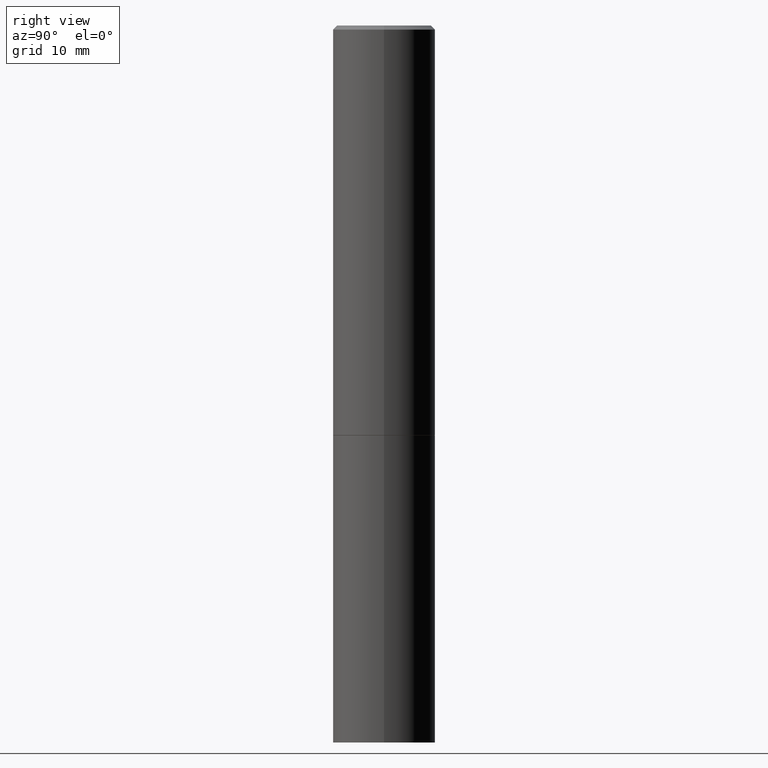
[diagram: clean part render]
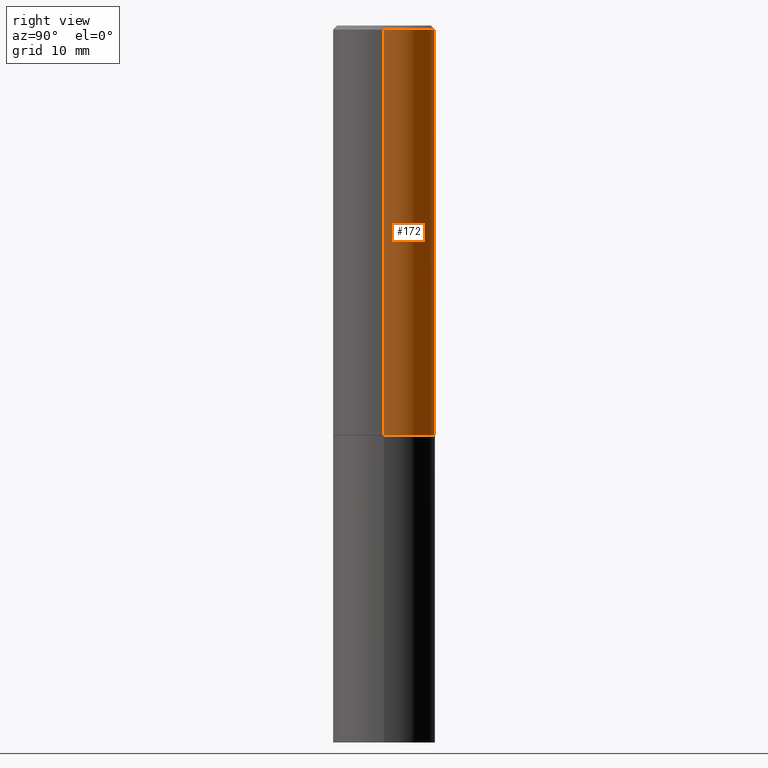
[diagram: same view with one face highlighted and labeled with its STEP entity id]
A machine part, right view. The second image highlights one B-rep face of the part: STEP entity #172.
In plain terms, the highlighted cylindrical surface (partial cylindrical patch) has radius 6.35 mm, axis along (-0, 0, 1).
Its self-contained STEP definition (entity closure, byte-faithful):
#2 = VERTEX_POINT ( 'NONE', #228 ) ;
#3 = LINE ( 'NONE', #238, #68 ) ;
#11 = EDGE_CURVE ( 'NONE', #2, #283, #248, .T. ) ;
#24 = DIRECTION ( 'NONE',  ( 1.000000000000000000, -6.982962677686266711E-15, 0.000000000000000000 ) ) ;
#27 = CARTESIAN_POINT ( 'NONE',  ( 4.888492143564087030E-29, -6.979471196347446580E-15, -1.998999999999999666 ) ) ;
#33 = LINE ( 'NONE', #293, #263 ) ;
#39 = DIRECTION ( 'NONE',  ( 1.000000000000000000, -6.982962677686266711E-15, 4.876176775795935793E-29 ) ) ;
#57 = DIRECTION ( 'NONE',  ( -2.445468806185136597E-29, 3.491481338843145583E-15, 1.000000000000000000 ) ) ;
#68 = VECTOR ( 'NONE', #232, 39.37007874015748143 ) ;
#71 = EDGE_CURVE ( 'NONE', #137, #283, #3, .T. ) ;
#72 = DIRECTION ( 'NONE',  ( -2.445468806185136597E-29, 3.491481338843145583E-15, 1.000000000000000000 ) ) ;
#87 = AXIS2_PLACEMENT_3D ( 'NONE', #340, #57, #247 ) ;
#104 = EDGE_LOOP ( 'NONE', ( #226, #161, #230, #253 ) ) ;
#109 = CARTESIAN_POINT ( 'NONE',  ( -0.2499999999999998057, 1.675911042644702196E-15, -0.02000000000000003164 ) ) ;
#125 = CIRCLE ( 'NONE', #297, 0.2500000000000000000 ) ;
#137 = VERTEX_POINT ( 'NONE', #242 ) ;
#139 = DIRECTION ( 'NONE',  ( -2.445468806185136877E-29, 3.491481338843145188E-15, 1.000000000000000000 ) ) ;
#161 = ORIENTED_EDGE ( 'NONE', *, *, #71, .T. ) ;
#172 = ADVANCED_FACE ( 'NONE', ( #326 ), #207, .T. ) ;
#184 = CARTESIAN_POINT ( 'NONE',  ( 0.2500000000000000000, -8.725211865769012469E-15, -1.998999999999999666 ) ) ;
#185 = VERTEX_POINT ( 'NONE', #184 ) ;
#207 = CYLINDRICAL_SURFACE ( 'NONE', #234, 0.2499999999999998890 ) ;
#226 = ORIENTED_EDGE ( 'NONE', *, *, #271, .T. ) ;
#228 = CARTESIAN_POINT ( 'NONE',  ( 0.2499999999999998057, -1.784954126219744611E-15, -0.02000000000000003164 ) ) ;
#230 = ORIENTED_EDGE ( 'NONE', *, *, #11, .F. ) ;
#232 = DIRECTION ( 'NONE',  ( -2.445468806185136877E-29, 3.491481338843145188E-15, 1.000000000000000000 ) ) ;
#234 = AXIS2_PLACEMENT_3D ( 'NONE', #320, #72, #39 ) ;
#238 = CARTESIAN_POINT ( 'NONE',  ( -0.2499999999999998890, 1.776356839400249676E-15, -1.229733772563726025E-29 ) ) ;
#242 = CARTESIAN_POINT ( 'NONE',  ( -0.2500000000000000000, -1.748293572161903489E-15, -1.998999999999999666 ) ) ;
#247 = DIRECTION ( 'NONE',  ( 1.000000000000000000, -6.982962677686266711E-15, 0.000000000000000000 ) ) ;
#248 = CIRCLE ( 'NONE', #87, 0.2499999999999998057 ) ;
#253 = ORIENTED_EDGE ( 'NONE', *, *, #342, .F. ) ;
#263 = VECTOR ( 'NONE', #139, 39.37007874015748143 ) ;
#271 = EDGE_CURVE ( 'NONE', #185, #137, #125, .T. ) ;
#283 = VERTEX_POINT ( 'NONE', #109 ) ;
#293 = CARTESIAN_POINT ( 'NONE',  ( 0.2499999999999998890, -1.745740669421565889E-15, 1.219044193948983388E-29 ) ) ;
#297 = AXIS2_PLACEMENT_3D ( 'NONE', #27, #329, #24 ) ;
#320 = CARTESIAN_POINT ( 'NONE',  ( 0.000000000000000000, 0.000000000000000000, 0.000000000000000000 ) ) ;
#326 = FACE_OUTER_BOUND ( 'NONE', #104, .T. ) ;
#329 = DIRECTION ( 'NONE',  ( -2.445468806185136597E-29, 3.491481338843145583E-15, 1.000000000000000000 ) ) ;
#340 = CARTESIAN_POINT ( 'NONE',  ( 4.890937612370280165E-31, -6.982962677686301470E-17, -0.02000000000000003164 ) ) ;
#342 = EDGE_CURVE ( 'NONE', #185, #2, #33, .T. ) ;